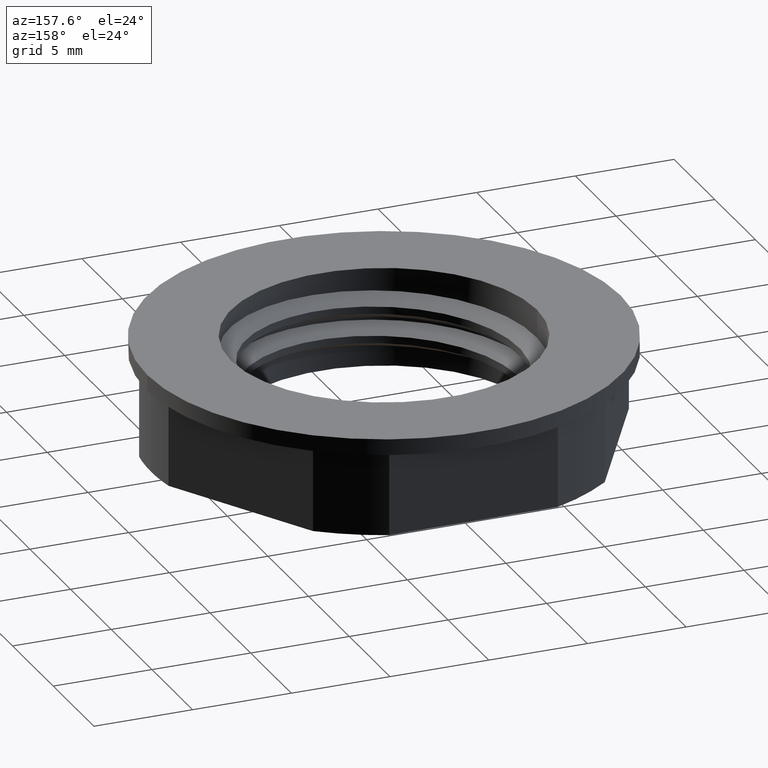
[diagram: clean part render]
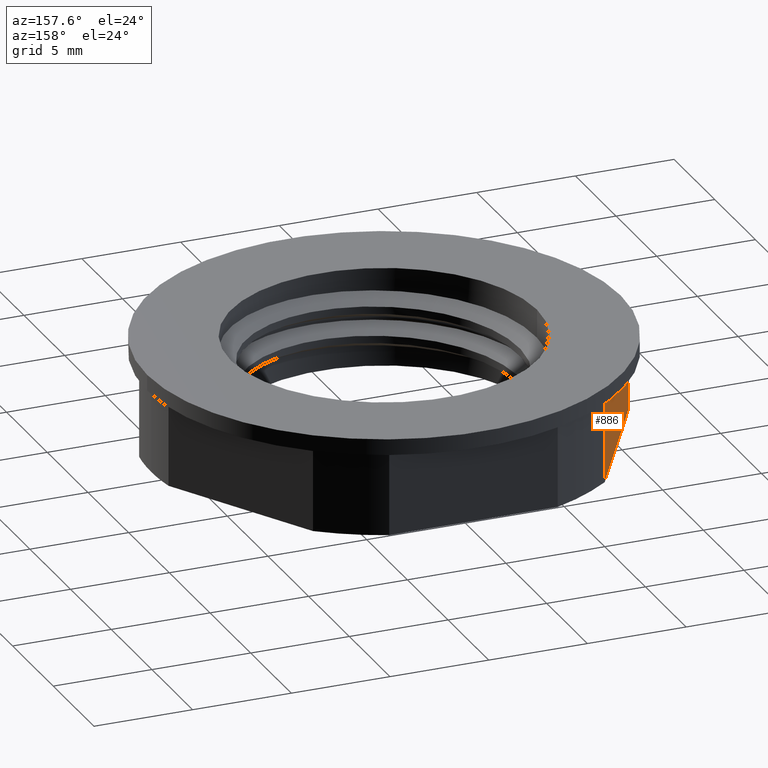
[diagram: same view with one face highlighted and labeled with its STEP entity id]
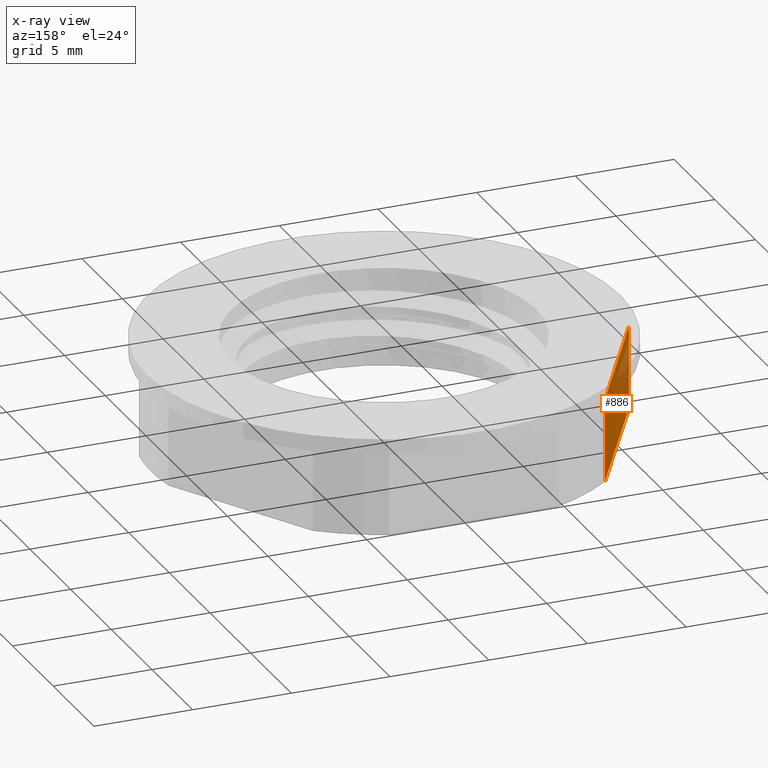
[diagram: x-ray of the same camera — body ghosted, the highlighted face saturated]
A machine part, auxiliary view. The second image highlights one B-rep face of the part: STEP entity #886.
The next image is the same camera in x-ray: the body ghosted, the highlighted face saturated — about 18% of this face is hidden behind the body in this view.
In plain terms, the highlighted planar face has unit normal (0.866, -0.5, 0).
Its self-contained STEP definition (entity closure, byte-faithful):
#274 = CARTESIAN_POINT ( 'NONE',  ( -6.350852961085867500, 10.99999999999998900, 0.0000000000000000000 ) ) ;
#282 = LINE ( 'NONE', #274, #1348 ) ;
#283 = DIRECTION ( 'NONE',  ( 0.4999999999999997200, 0.8660254037844387100, 0.0000000000000000000 ) ) ;
#288 = LINE ( 'NONE', #338, #1364 ) ;
#301 = CARTESIAN_POINT ( 'NONE',  ( -11.66169509203510300, 1.801351598218542000, 4.200000000000000200 ) ) ;
#302 = LINE ( 'NONE', #301, #1341 ) ;
#306 = DIRECTION ( 'NONE',  ( 0.4999999999999997800, 0.8660254037844387100, 0.0000000000000000000 ) ) ;
#338 = CARTESIAN_POINT ( 'NONE',  ( -7.390863791222513700, 9.198648401781429800, 0.0000000000000000000 ) ) ;
#350 = DIRECTION ( 'NONE',  ( 0.0000000000000000000, 0.0000000000000000000, 1.000000000000000000 ) ) ;
#499 = VERTEX_POINT ( 'NONE', #699 ) ;
#500 = VERTEX_POINT ( 'NONE', #703 ) ;
#507 = VERTEX_POINT ( 'NONE', #692 ) ;
#542 = EDGE_LOOP ( 'NONE', ( #653, #690, #665, #680 ) ) ;
#557 = VERTEX_POINT ( 'NONE', #747 ) ;
#653 = ORIENTED_EDGE ( 'NONE', *, *, #850, .F. ) ;
#665 = ORIENTED_EDGE ( 'NONE', *, *, #814, .F. ) ;
#680 = ORIENTED_EDGE ( 'NONE', *, *, #840, .T. ) ;
#690 = ORIENTED_EDGE ( 'NONE', *, *, #835, .F. ) ;
#692 = CARTESIAN_POINT ( 'NONE',  ( -7.390863791222513700, 9.198648401781429800, 0.0000000000000000000 ) ) ;
#699 = CARTESIAN_POINT ( 'NONE',  ( -7.390863791222513700, 9.198648401781431600, 4.200000000000000200 ) ) ;
#703 = CARTESIAN_POINT ( 'NONE',  ( -11.66169509203510300, 1.801351598218542000, 0.0000000000000000000 ) ) ;
#747 = CARTESIAN_POINT ( 'NONE',  ( -11.66169509203510300, 1.801351598218542400, 4.200000000000000200 ) ) ;
#770 = LINE ( 'NONE', #785, #1326 ) ;
#772 = DIRECTION ( 'NONE',  ( 0.0000000000000000000, -0.0000000000000000000, -1.000000000000000000 ) ) ;
#785 = CARTESIAN_POINT ( 'NONE',  ( -11.66169509203510500, 1.801351598218540400, 5.000000000000000000 ) ) ;
#814 = EDGE_CURVE ( 'NONE', #557, #500, #770, .T. ) ;
#835 = EDGE_CURVE ( 'NONE', #500, #507, #282, .T. ) ;
#840 = EDGE_CURVE ( 'NONE', #557, #499, #302, .T. ) ;
#850 = EDGE_CURVE ( 'NONE', #507, #499, #288, .T. ) ;
#886 = ADVANCED_FACE ( 'NONE', ( #1067 ), #1061, .F. ) ;
#1061 = PLANE ( 'NONE',  #1259 ) ;
#1064 = DIRECTION ( 'NONE',  ( 0.8660254037844388200, -0.4999999999999997800, 0.0000000000000000000 ) ) ;
#1065 = DIRECTION ( 'NONE',  ( 0.4999999999999997200, 0.8660254037844387100, 0.0000000000000000000 ) ) ;
#1066 = CARTESIAN_POINT ( 'NONE',  ( -6.350852961085867500, 10.99999999999998900, 5.000000000000000000 ) ) ;
#1067 = FACE_OUTER_BOUND ( 'NONE', #542, .T. ) ;
#1259 = AXIS2_PLACEMENT_3D ( 'NONE', #1066, #1064, #1065 ) ;
#1326 = VECTOR ( 'NONE', #772, 1000.000000000000000 ) ;
#1341 = VECTOR ( 'NONE', #306, 1000.000000000000100 ) ;
#1348 = VECTOR ( 'NONE', #283, 1000.000000000000100 ) ;
#1364 = VECTOR ( 'NONE', #350, 1000.000000000000000 ) ;